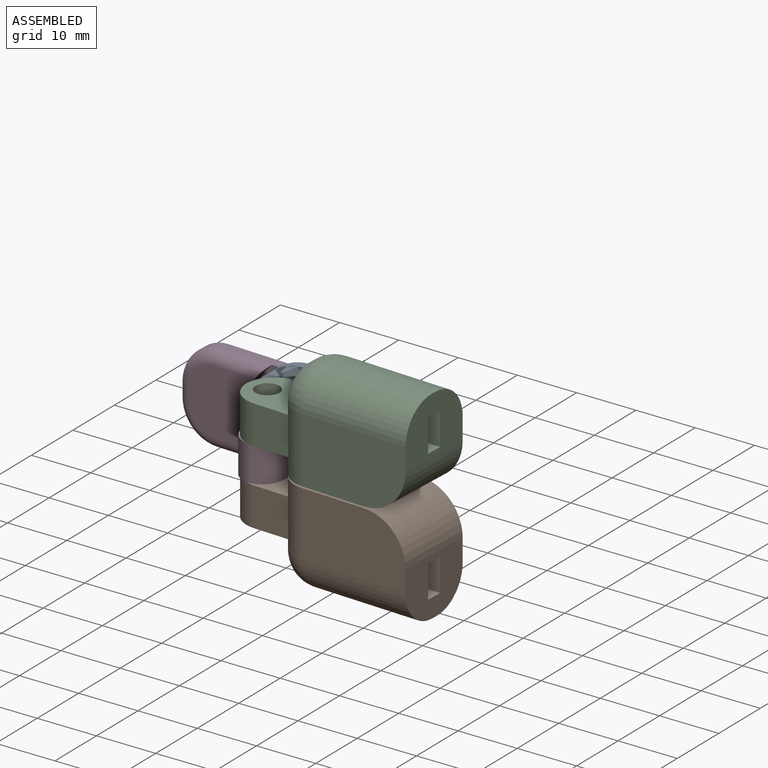
[diagram: assembled view]
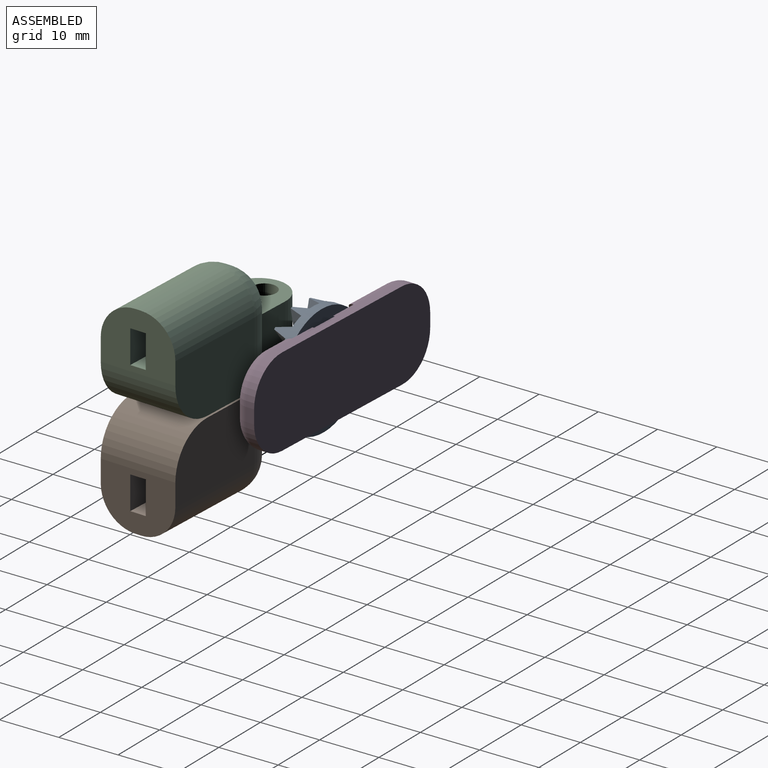
[diagram: assembled view, second angle]
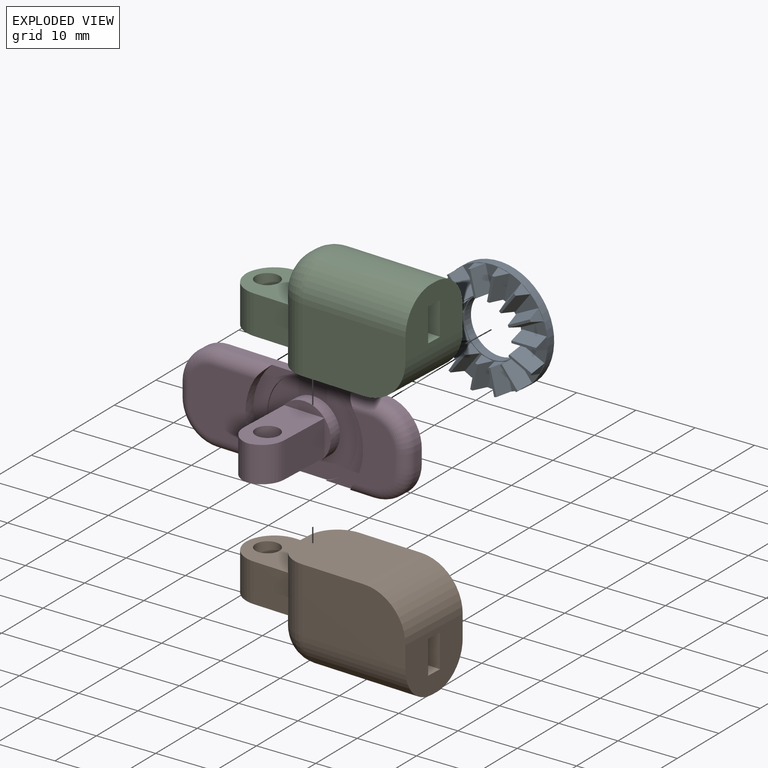
[diagram: exploded view]
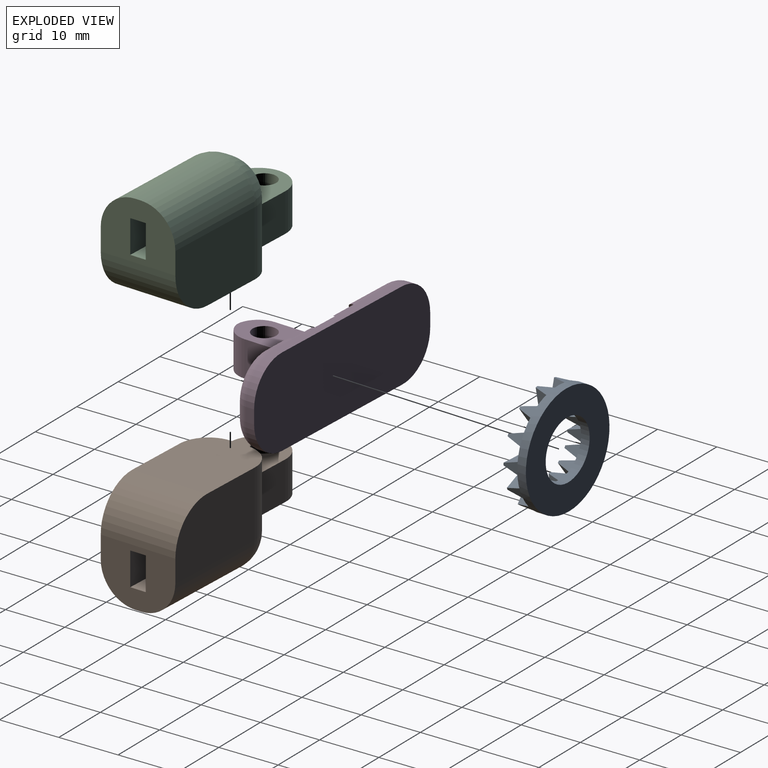
[diagram: exploded view, second angle]
ASSEMBLY  parts=4 mates=3
PART A: 74 faces, bbox 19x19x4 mm
  f0: plane 4.28x1.34mm, normal (0,0,1), area 1.7mm2, adj f1,f2,f3,f4
  f1: plane 2.47x1.95mm, normal (0.97,-0.22,0), area 3mm2, adj f0,f2,f4,f72
  f2: plane 4.37x2.47mm, normal (-0.21,-0.93,0.31), area 11.2mm2, adj f0,f1,f3,f72
  f3: plane 2.47x1.95mm, normal (-0.97,0.22,0), area 3mm2, adj f0,f2,f4,f72
  f4: plane 4.37x2.47mm, normal (0.21,0.93,0.31), area 11.2mm2, adj f0,f1,f3,f72
  f5: plane 3.6x2.98mm, normal (0,0,1), area 1.7mm2, adj f6,f7,f8,f9
  f6: plane 2.47x1.56mm, normal (0.78,-0.62,0), area 3mm2, adj f5,f7,f9,f72
  f7: plane 3.86x3.31mm, normal (-0.59,-0.74,0.31), area 11.2mm2, adj f5,f6,f8,f72
  f8: plane 2.47x1.56mm, normal (-0.78,0.62,0), area 3mm2, adj f5,f7,f9,f72
  f9: plane 3.86x3.31mm, normal (0.59,0.74,0.31), area 11.2mm2, adj f5,f6,f8,f72
  f10: plane 4.04x2.22mm, normal (0,0,1), area 1.7mm2, adj f11,f12,f13,f14
  f11: plane 2.47x1.8mm, normal (0.43,-0.9,0), area 3mm2, adj f10,f12,f14,f72
  f12: plane 4.22x2.59mm, normal (-0.86,-0.41,0.31), area 11.2mm2, adj f10,f11,f13,f72
  f13: plane 2.47x1.8mm, normal (-0.43,0.9,0), area 3mm2, adj f10,f12,f14,f72
  f14: plane 4.22x2.59mm, normal (0.86,0.41,0.31), area 11.2mm2, adj f10,f11,f13,f72
  f15: plane 4.3x0.39mm, normal (0,0,1), area 1.7mm2, adj f16,f17,f18,f19
  f16: plane 2.47x2mm, normal (0,-1,0), area 3mm2, adj f15,f17,f19,f72
  f17: plane 4.3x2.47mm, normal (-0.95,0,0.31), area 11.2mm2, adj f15,f16,f18,f72
  f18: plane 2.47x2mm, normal (0,1,0), area 3mm2, adj f15,f17,f19,f72
  f19: plane 4.3x2.47mm, normal (0.95,0,0.31), area 11.2mm2, adj f15,f16,f18,f72
  f20: plane 4.04x2.22mm, normal (0,0,1), area 1.7mm2, adj f21,f22,f23,f24
  f21: plane 2.47x1.8mm, normal (-0.43,-0.9,0), area 3mm2, adj f20,f22,f24,f72
  f22: plane 4.22x2.59mm, normal (-0.86,0.41,0.31), area 11.2mm2, adj f20,f21,f23,f72
  f23: plane 2.47x1.8mm, normal (0.43,0.9,0), area 3mm2, adj f20,f22,f24,f72
  f24: plane 4.22x2.59mm, normal (0.86,-0.41,0.31), area 11.2mm2, adj f20,f21,f23,f72
  f25: plane 3.6x2.98mm, normal (0,0,1), area 1.7mm2, adj f26,f27,f28,f29
  f26: plane 2.47x1.56mm, normal (-0.78,-0.62,0), area 3mm2, adj f25,f27,f29,f72
  f27: plane 3.86x3.31mm, normal (-0.59,0.74,0.31), area 11.2mm2, adj f25,f26,f28,f72
  f28: plane 2.47x1.56mm, normal (0.78,0.62,0), area 3mm2, adj f25,f27,f29,f72
  f29: plane 3.86x3.31mm, normal (0.59,-0.74,0.31), area 11.2mm2, adj f25,f26,f28,f72
  f30: plane 4.28x1.34mm, normal (0,0,1), area 1.7mm2, adj f31,f32,f33,f34
  f31: plane 2.47x1.95mm, normal (-0.97,-0.22,0), area 3mm2, adj f30,f32,f34,f72
  f32: plane 4.37x2.47mm, normal (-0.21,0.93,0.31), area 11.2mm2, adj f30,f31,f33,f72
  f33: plane 2.47x1.95mm, normal (0.97,0.22,0), area 3mm2, adj f30,f32,f34,f72
  f34: plane 4.37x2.47mm, normal (0.21,-0.93,0.31), area 11.2mm2, adj f30,f31,f33,f72
  f35: plane 4.28x1.34mm, normal (0,0,1), area 1.7mm2, adj f36,f37,f38,f39
  f36: plane 2.47x1.95mm, normal (-0.97,0.22,0), area 3mm2, adj f35,f37,f39,f72
  f37: plane 4.37x2.47mm, normal (0.21,0.93,0.31), area 11.2mm2, adj f35,f36,f38,f72
  f38: plane 2.47x1.95mm, normal (0.97,-0.22,0), area 3mm2, adj f35,f37,f39,f72
  f39: plane 4.37x2.47mm, normal (-0.21,-0.93,0.31), area 11.2mm2, adj f35,f36,f38,f72
  f40: plane 3.6x2.98mm, normal (0,0,1), area 1.7mm2, adj f41,f42,f43,f44
  f41: plane 2.47x1.56mm, normal (-0.78,0.62,0), area 3mm2, adj f40,f42,f44,f72
  f42: plane 3.86x3.31mm, normal (0.59,0.74,0.31), area 11.2mm2, adj f40,f41,f43,f72
  f43: plane 2.47x1.56mm, normal (0.78,-0.62,0), area 3mm2, adj f40,f42,f44,f72
  f44: plane 3.86x3.31mm, normal (-0.59,-0.74,0.31), area 11.2mm2, adj f40,f41,f43,f72
  f45: plane 4.04x2.22mm, normal (0,0,1), area 1.7mm2, adj f46,f47,f48,f49
  f46: plane 2.47x1.8mm, normal (-0.43,0.9,0), area 3mm2, adj f45,f47,f49,f72
  f47: plane 4.22x2.59mm, normal (0.86,0.41,0.31), area 11.2mm2, adj f45,f46,f48,f72
  f48: plane 2.47x1.8mm, normal (0.43,-0.9,0), area 3mm2, adj f45,f47,f49,f72
  f49: plane 4.22x2.59mm, normal (-0.86,-0.41,0.31), area 11.2mm2, adj f45,f46,f48,f72
  f50: plane 4.3x0.39mm, normal (0,0,1), area 1.7mm2, adj f51,f52,f53,f54
  f51: plane 2.47x2mm, normal (0,1,0), area 3mm2, adj f50,f52,f54,f72
  f52: plane 4.3x2.47mm, normal (0.95,0,0.31), area 11.2mm2, adj f50,f51,f53,f72
  f53: plane 2.47x2mm, normal (0,-1,0), area 3mm2, adj f50,f52,f54,f72
  f54: plane 4.3x2.47mm, normal (-0.95,0,0.31), area 11.2mm2, adj f50,f51,f53,f72
  f55: plane 4.04x2.22mm, normal (0,0,1), area 1.7mm2, adj f56,f57,f58,f59
  f56: plane 2.47x1.8mm, normal (0.43,0.9,0), area 3mm2, adj f55,f57,f59,f72
  f57: plane 4.22x2.59mm, normal (0.86,-0.41,0.31), area 11.2mm2, adj f55,f56,f58,f72
  f58: plane 2.47x1.8mm, normal (-0.43,-0.9,0), area 3mm2, adj f55,f57,f59,f72
  f59: plane 4.22x2.59mm, normal (-0.86,0.41,0.31), area 11.2mm2, adj f55,f56,f58,f72
  f60: plane 3.6x2.98mm, normal (0,0,1), area 1.7mm2, adj f61,f62,f63,f64
  f61: plane 2.47x1.56mm, normal (0.78,0.62,0), area 3mm2, adj f60,f62,f64,f72
  f62: plane 3.86x3.31mm, normal (0.59,-0.74,0.31), area 11.2mm2, adj f60,f61,f63,f72
  f63: plane 2.47x1.56mm, normal (-0.78,-0.62,0), area 3mm2, adj f60,f62,f64,f72
  f64: plane 3.86x3.31mm, normal (-0.59,0.74,0.31), area 11.2mm2, adj f60,f61,f63,f72
  f65: plane 4.28x1.34mm, normal (0,0,1), area 1.7mm2, adj f66,f67,f68,f69
  f66: plane 2.47x1.95mm, normal (0.97,0.22,0), area 3mm2, adj f65,f67,f69,f72
  f67: plane 4.37x2.47mm, normal (0.21,-0.93,0.31), area 11.2mm2, adj f65,f66,f68,f72
  f68: plane 2.47x1.95mm, normal (-0.97,-0.22,0), area 3mm2, adj f65,f67,f69,f72
  f69: plane 4.37x2.47mm, normal (-0.21,0.93,0.31), area 11.2mm2, adj f65,f66,f68,f72
  f70: plane 19x19mm, normal (0,0,-1), area 205mm2, adj f71,f73
  f71: cylinder r=9.5mm len=19mm, axis (0,0,-1), area 89.5mm2, adj f70,f72
  f72: plane 19x19mm, normal (0,0,1), area 84.6mm2, adj f1,f2,f3,f4,f6,f7,f8,f9
  f73: cylinder r=5mm len=10mm, axis (0,0,-1), area 47.1mm2, adj f70,f72
PART B: 27 faces, bbox 32.4x13x17 mm
  f0: plane 3x2.86mm, normal (1,0,0), area 8.6mm2, adj f4,f9,f13,f18
  f1: plane 13x9.76mm, normal (-1,0,0), area 96.3mm2, adj f2,f3,f5,f7,f8,f21,f22,f23
  f2: plane 18x1mm, normal (0,0,-1), area 18mm2, adj f1,f7,f8,f11
  f3: plane 18x11mm, normal (0,-1,0), area 186.7mm2, adj f1,f4,f7,f13,f26
  f4: plane 15.76x13mm, normal (0,0,1), area 194.1mm2, adj f0,f3,f5,f9,f13,f26
  f5: plane 18x11mm, normal (0,1,0), area 186.7mm2, adj f1,f4,f8,f9,f26
  f6: plane 3x2.64mm, normal (1,0,0), area 7.5mm2, adj f9,f10,f11,f12,f13,f17
  f7: cylinder r=6mm len=18mm, axis (-1,0,0), area 169.6mm2, adj f1,f2,f3,f12
  f8: cylinder r=6mm len=18mm, axis (1,0,0), area 169.6mm2, adj f1,f2,f5,f10
  f9: cylinder r=5mm len=11mm, axis (0,0,-1), area 61.2mm2, adj f0,f4,f5,f6,f10,f15,f17,f18
  f10: torus R=1mm, axis (-1,0,0), area 51.6mm2, adj f6,f8,f9,f11
  f11: cylinder r=5mm len=5mm, axis (0,-1,0), area 7.9mm2, adj f2,f6,f10,f12
  f12: torus R=1mm, axis (-1,0,0), area 51.6mm2, adj f6,f7,f11,f13
  f13: cylinder r=5mm len=11mm, axis (0,0,1), area 65.5mm2, adj f0,f3,f4,f6,f12,f14,f17,f18
  f14: plane 6.5x5.57mm, normal (0,-1,0), area 36.2mm2, adj f13,f17,f18,f19
  f15: plane 6.5x6mm, normal (0,1,0), area 39mm2, adj f9,f17,f18,f20
  f16: cylinder r=2mm len=6.5mm, axis (0,0,1), area 81.7mm2, adj f17,f18
  f17: plane 10.83x9.5mm, normal (0,0,-1), area 69.2mm2, adj f6,f9,f13,f14,f15,f16,f19,f20
  f18: plane 10.83x9.5mm, normal (0,0,1), area 69.2mm2, adj f0,f9,f13,f14,f15,f16,f19,f20
  f19: cylinder r=4.83mm len=6.5mm, axis (0,0,1), area 48.8mm2, adj f14,f17,f18,f20
  f20: cylinder r=4.83mm len=6.5mm, axis (0,0,-1), area 48.8mm2, adj f15,f17,f18,f19
  f21: plane 21x2.7mm, normal (0,0,-1), area 56.8mm2, adj f1,f22,f24,f25
  f22: plane 21x5.6mm, normal (0,-1,0), area 117.6mm2, adj f1,f21,f23,f25
  f23: plane 21x2.7mm, normal (0,0,1), area 56.8mm2, adj f1,f22,f24,f25
  f24: plane 21x5.6mm, normal (0,1,0), area 117.6mm2, adj f1,f21,f23,f25
  f25: plane 5.6x2.7mm, normal (-1,0,0), area 15.1mm2, adj f21,f22,f23,f24
  f26: cylinder r=7.24mm len=13mm, axis (0,-1,0), area 147.9mm2, adj f1,f3,f4,f5
PART C: 27 faces, bbox 32.4x13x17 mm
  f0: plane 3x2.86mm, normal (1,0,0), area 8.6mm2, adj f4,f9,f13,f18
  f1: plane 13x9.76mm, normal (-1,0,0), area 96.3mm2, adj f2,f3,f5,f7,f8,f21,f22,f23
  f2: plane 18x1mm, normal (0,0,1), area 18mm2, adj f1,f7,f8,f11
  f3: plane 18x11mm, normal (0,-1,0), area 186.7mm2, adj f1,f4,f7,f13,f26
  f4: plane 15.76x13mm, normal (0,0,-1), area 194.1mm2, adj f0,f3,f5,f9,f13,f26
  f5: plane 18x11mm, normal (0,1,0), area 186.7mm2, adj f1,f4,f8,f9,f26
  f6: plane 3x2.64mm, normal (1,0,0), area 7.5mm2, adj f9,f10,f11,f12,f13,f17
  f7: cylinder r=6mm len=18mm, axis (-1,0,0), area 169.6mm2, adj f1,f2,f3,f12
  f8: cylinder r=6mm len=18mm, axis (1,0,0), area 169.6mm2, adj f1,f2,f5,f10
  f9: cylinder r=5mm len=11mm, axis (0,0,1), area 61.2mm2, adj f0,f4,f5,f6,f10,f15,f17,f18
  f10: torus R=1mm, axis (-1,0,0), area 51.6mm2, adj f6,f8,f9,f11
  f11: cylinder r=5mm len=5mm, axis (0,-1,0), area 7.9mm2, adj f2,f6,f10,f12
  f12: torus R=1mm, axis (-1,0,0), area 51.6mm2, adj f6,f7,f11,f13
  f13: cylinder r=5mm len=11mm, axis (0,0,-1), area 65.5mm2, adj f0,f3,f4,f6,f12,f14,f17,f18
  f14: plane 6.5x5.57mm, normal (0,-1,0), area 36.2mm2, adj f13,f17,f18,f19
  f15: plane 6.5x6mm, normal (0,1,0), area 39mm2, adj f9,f17,f18,f20
  f16: cylinder r=2mm len=6.5mm, axis (0,0,-1), area 81.7mm2, adj f17,f18
  f17: plane 10.83x9.5mm, normal (0,0,1), area 69.2mm2, adj f6,f9,f13,f14,f15,f16,f19,f20
  f18: plane 10.83x9.5mm, normal (0,0,-1), area 69.2mm2, adj f0,f9,f13,f14,f15,f16,f19,f20
  f19: cylinder r=4.83mm len=6.5mm, axis (0,0,-1), area 48.8mm2, adj f14,f17,f18,f20
  f20: cylinder r=4.83mm len=6.5mm, axis (0,0,1), area 48.8mm2, adj f15,f17,f18,f19
  f21: plane 21x2.7mm, normal (0,0,1), area 56.8mm2, adj f1,f22,f24,f25
  f22: plane 21x5.6mm, normal (0,-1,0), area 117.6mm2, adj f1,f21,f23,f25
  f23: plane 21x2.7mm, normal (0,0,-1), area 56.8mm2, adj f1,f22,f24,f25
  f24: plane 21x5.6mm, normal (0,1,0), area 117.6mm2, adj f1,f21,f23,f25
  f25: plane 5.6x2.7mm, normal (-1,0,0), area 15.1mm2, adj f21,f22,f23,f24
  f26: cylinder r=7.24mm len=13mm, axis (0,-1,0), area 147.9mm2, adj f1,f3,f4,f5
PART D: 40 faces, bbox 41x16.5x16 mm
  f0: cylinder r=4.62mm len=9.25mm, axis (0,-1,0), area 52.3mm2, adj f9,f14
  f1: cylinder r=3.86mm len=6mm, axis (0,0,1), area 31.1mm2, adj f2,f6,f7,f8
  f2: cylinder r=2.25mm len=6mm, axis (0,0,-1), area 6.1mm2, adj f1,f3,f6,f8
  f3: cylinder r=3.86mm len=6mm, axis (0,0,-1), area 31.1mm2, adj f2,f5,f6,f8
  f4: cylinder r=2mm len=6mm, axis (0,0,-1), area 75.4mm2, adj f6,f8
  f5: plane 9.14x6mm, normal (1,0,0), area 54.8mm2, adj f3,f6,f8,f9
  f6: plane 12.96x7mm, normal (0,0,1), area 72mm2, adj f1,f2,f3,f4,f5,f7,f9
  f7: plane 9.14x6mm, normal (-1,0,0), area 54.8mm2, adj f1,f6,f8,f9
  f8: plane 12.96x7mm, normal (0,0,-1), area 72mm2, adj f1,f2,f3,f4,f5,f7,f9
  f9: plane 9.25x9.25mm, normal (0,-1,0), area 25.2mm2, adj f0,f5,f6,f7,f8
  f10: plane 15.72x15mm, normal (0,-1,0), area 124.9mm2, adj f11,f12,f13,f34,f37
  f11: cylinder r=7.86mm len=15mm, axis (0,-1,0), area 6mm2, adj f10,f32,f34,f36,f37,f39
  f12: cylinder r=7.86mm len=15mm, axis (0,-1,0), area 6mm2, adj f10,f33,f34,f35,f37,f38
  f13: cylinder r=4.61mm len=9.23mm, axis (0,-1,0), area 8.7mm2, adj f10,f14
  f14: plane 9.25x9.25mm, normal (0,1,0), area 0.4mm2, adj f0,f13
  f15: plane 2.3x1.5mm, normal (1,0,0), area 3.4mm2, adj f18,f20,f21,f22
  f16: plane 2.3x1.5mm, normal (-1,0,0), area 3.4mm2, adj f17,f19,f22,f23
  f17: cylinder r=2mm len=2.3mm, axis (0,0,1), area 7.2mm2, adj f16,f25,f27,f28
  f18: cylinder r=2mm len=2.3mm, axis (0,0,-1), area 7.2mm2, adj f15,f24,f29,f30
  f19: cylinder r=6.35mm len=6.35mm, axis (0,1,0), area 15mm2, adj f16,f22,f28,f37
  f20: cylinder r=6.35mm len=6.35mm, axis (0,1,0), area 15mm2, adj f15,f22,f29,f37
  f21: cylinder r=6.35mm len=6.35mm, axis (0,1,0), area 15mm2, adj f15,f22,f24,f34
  f22: plane 40x15mm, normal (0,1,0), area 565.4mm2, adj f15,f16,f19,f20,f21,f23,f34,f37
  f23: cylinder r=6.35mm len=6.35mm, axis (0,1,0), area 15mm2, adj f16,f22,f25,f34
  f24: torus R=4.35mm, axis (0,-1,0), area 27.7mm2, adj f18,f21,f30,f32
  f25: torus R=4.35mm, axis (0,-1,0), area 27.7mm2, adj f17,f23,f27,f33
  f26: cylinder r=10.25mm len=14.98mm, axis (0,-1,0), area 27.9mm2, adj f27,f33,f35,f38
  f27: plane 11x7.14mm, normal (0,-1,0), area 58.5mm2, adj f17,f25,f26,f28,f33,f35
  f28: torus R=4.35mm, axis (0,-1,0), area 27.7mm2, adj f17,f19,f27,f35
  f29: torus R=4.35mm, axis (0,-1,0), area 27.7mm2, adj f18,f20,f30,f36
  f30: plane 11.56x11mm, normal (0,-1,0), area 107.1mm2, adj f18,f24,f29,f31,f32,f36
  f31: cylinder r=10.25mm len=14.98mm, axis (0,-1,0), area 27.9mm2, adj f30,f32,f36,f39
  f32: cylinder r=2mm len=13.51mm, axis (-1,0,0), area 26.7mm2, adj f11,f24,f30,f31,f34,f39
  f33: cylinder r=2mm len=9.09mm, axis (-1,0,0), area 12.8mm2, adj f12,f25,f26,f27,f34,f38
  f34: plane 27.3x1.5mm, normal (0,0,-1), area 40.5mm2, adj f10,f11,f12,f21,f22,f23,f32,f33
  f35: cylinder r=2mm len=9.09mm, axis (1,0,0), area 12.8mm2, adj f12,f26,f27,f28,f37,f38
  f36: cylinder r=2mm len=13.51mm, axis (1,0,0), area 26.7mm2, adj f11,f29,f30,f31,f37,f39
  f37: plane 27.3x1.5mm, normal (0,0,1), area 40.5mm2, adj f10,f11,f12,f19,f20,f22,f35,f36
  f38: plane 14.98x7.87mm, normal (0,-1,0), area 42.7mm2, adj f12,f26,f33,f35
  f39: plane 14.98x7.87mm, normal (0,-1,0), area 42.7mm2, adj f11,f31,f32,f36
PLACE A rot(axis=(0.73,-0.5,0.46),105.9deg) t=(-126.95,-32.33,10.94)mm
PLACE B rot(axis=(0,0,1),177.5deg) t=(-102.59,-55.43,11.24)mm
PLACE C rot(axis=(0,0,1),177.5deg) t=(-102.59,-55.43,10.64)mm
PLACE D rot(axis=(-0.02,-1,0),180deg) t=(-101.56,-31.75,10.94)mm
MATE revolute B.f16 <-> D.f4  axis (0,0,1) through (-127.39,-42.5,7.94)mm
MATE revolute C.f16 <-> D.f4  axis (0,0,-1) through (-127.39,-42.5,13.94)mm
MATE revolute D.f0 <-> A.f71  axis (-0.04,-1,0) through (-126.95,-32.36,10.94)mm
